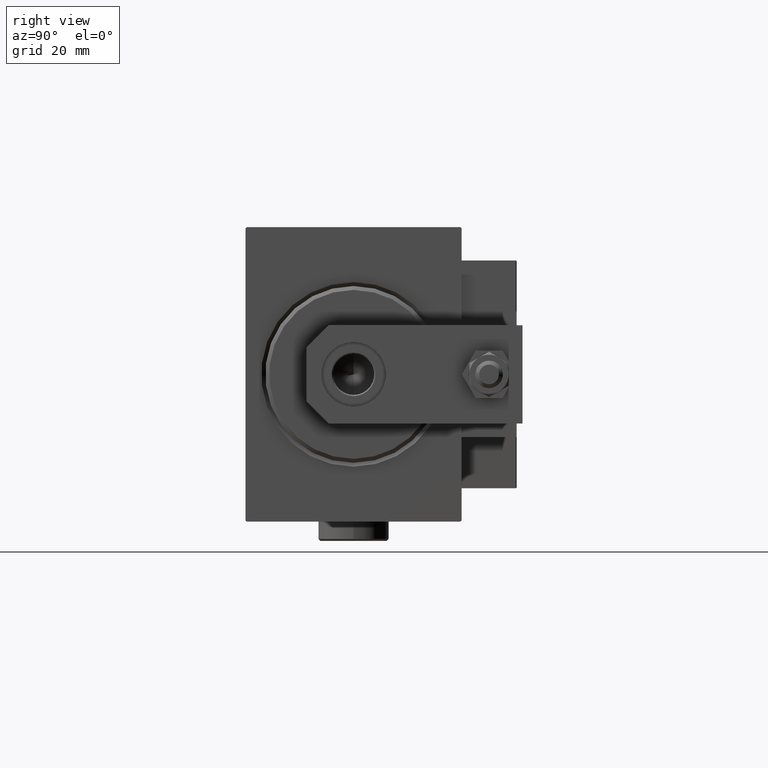
[diagram: clean part render]
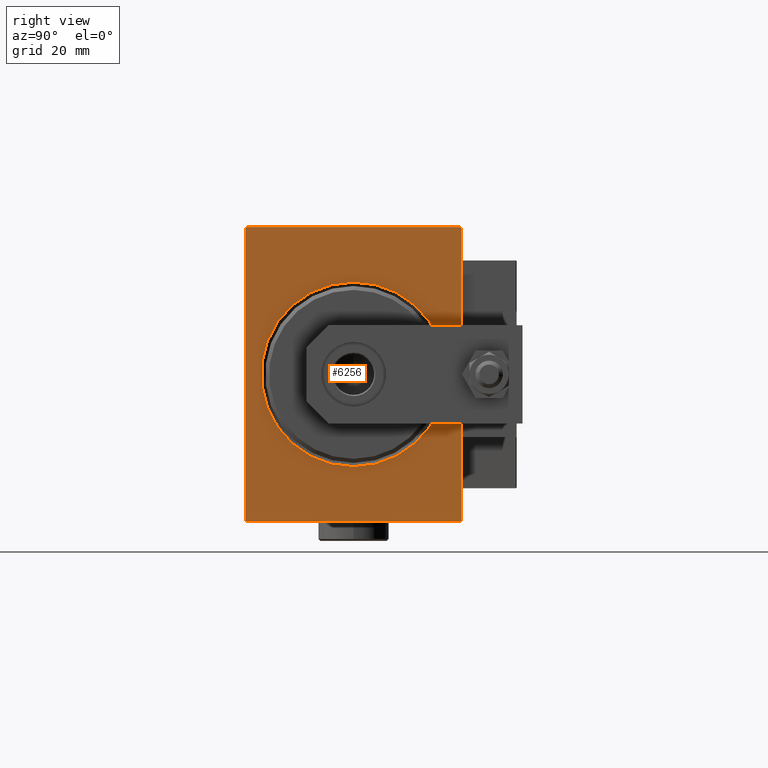
[diagram: same view with one face highlighted and labeled with its STEP entity id]
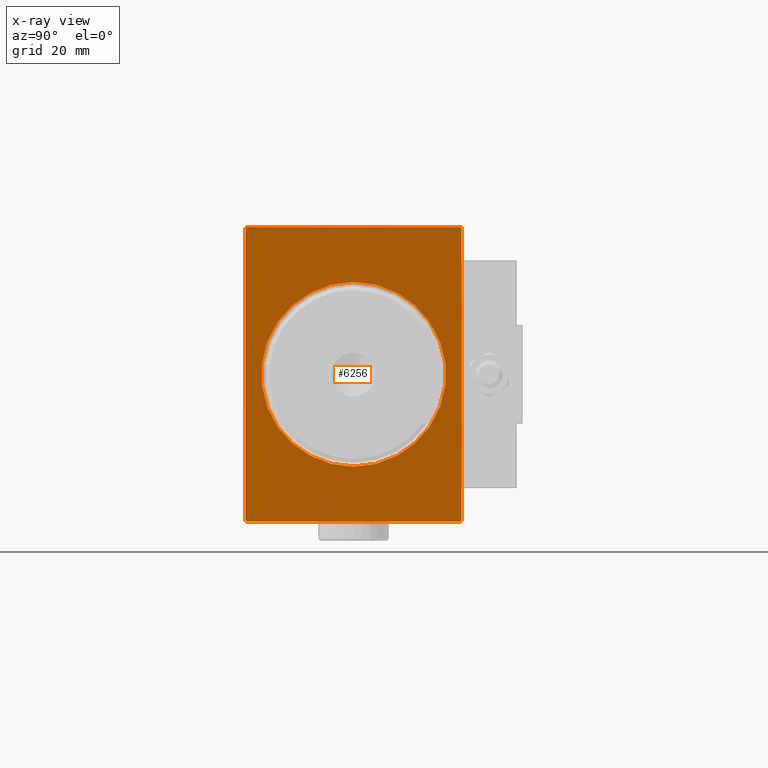
[diagram: x-ray of the same camera — body ghosted, the highlighted face saturated]
A machine part, right view. The second image highlights one B-rep face of the part: STEP entity #6256.
The next image is the same camera in x-ray: the body ghosted, the highlighted face saturated — about 0% of this face is hidden behind the body in this view.
In plain terms, the highlighted planar face has unit normal (-1, 0, 0).
Its self-contained STEP definition (entity closure, byte-faithful):
#690 = CARTESIAN_POINT ( 'NONE',  ( 0.000000000000000000, 0.000000000000000000, 0.000000000000000000 ) ) ;
#1217 = CARTESIAN_POINT ( 'NONE',  ( 0.000000000000000000, 27.20000000000000284, 37.50000000000000711 ) ) ;
#3337 = ORIENTED_EDGE ( 'NONE', *, *, #10580, .T. ) ;
#4147 = DIRECTION ( 'NONE',  ( 0.000000000000000000, 1.000000000000000000, 0.000000000000000000 ) ) ;
#5504 = EDGE_CURVE ( 'NONE', #7677, #23629, #23233, .T. ) ;
#5636 = CARTESIAN_POINT ( 'NONE',  ( 0.000000000000000000, 0.000000000000000000, 0.000000000000000000 ) ) ;
#6256 = ADVANCED_FACE ( 'NONE', ( #6659, #17984 ), #33691, .F. ) ;
#6304 = VERTEX_POINT ( 'NONE', #18247 ) ;
#6528 = ORIENTED_EDGE ( 'NONE', *, *, #8495, .T. ) ;
#6659 = FACE_BOUND ( 'NONE', #22028, .T. ) ;
#7175 = CARTESIAN_POINT ( 'NONE',  ( 0.000000000000000000, 0.000000000000000000, 0.000000000000000000 ) ) ;
#7677 = VERTEX_POINT ( 'NONE', #11452 ) ;
#7716 = CIRCLE ( 'NONE', #50473, 23.50000000000000355 ) ;
#8495 = EDGE_CURVE ( 'NONE', #17993, #12091, #49881, .T. ) ;
#9288 = CARTESIAN_POINT ( 'NONE',  ( 0.000000000000000000, -27.20000000000000284, 37.49999999999999289 ) ) ;
#10580 = EDGE_CURVE ( 'NONE', #32556, #23629, #21459, .T. ) ;
#10883 = VERTEX_POINT ( 'NONE', #15201 ) ;
#11452 = CARTESIAN_POINT ( 'NONE',  ( 0.000000000000000000, -27.50000000000000000, 37.19999999999999574 ) ) ;
#11565 = CARTESIAN_POINT ( 'NONE',  ( 0.000000000000000000, -27.50000000000000000, -37.19999999999999574 ) ) ;
#12091 = VERTEX_POINT ( 'NONE', #49046 ) ;
#13452 = EDGE_CURVE ( 'NONE', #7677, #30564, #15000, .T. ) ;
#14603 = EDGE_CURVE ( 'NONE', #6304, #12091, #34515, .T. ) ;
#14746 = CARTESIAN_POINT ( 'NONE',  ( 0.000000000000000000, -27.50000000000000000, 37.49999999999999289 ) ) ;
#15000 = LINE ( 'NONE', #30711, #30983 ) ;
#15145 = LINE ( 'NONE', #19262, #46104 ) ;
#15201 = CARTESIAN_POINT ( 'NONE',  ( 0.000000000000000000, 0.000000000000000000, 23.50000000000000355 ) ) ;
#15229 = CARTESIAN_POINT ( 'NONE',  ( 0.000000000000000000, -27.50000000000000000, -37.50000000000000711 ) ) ;
#15417 = DIRECTION ( 'NONE',  ( 0.000000000000000000, 0.000000000000000000, -1.000000000000000000 ) ) ;
#17105 = DIRECTION ( 'NONE',  ( 0.000000000000000000, -1.000000000000000000, -2.523234146875355998E-16 ) ) ;
#17172 = CARTESIAN_POINT ( 'NONE',  ( 0.000000000000000000, -27.19999999999999218, -37.50000000000000711 ) ) ;
#17984 = FACE_OUTER_BOUND ( 'NONE', #31320, .T. ) ;
#17993 = VERTEX_POINT ( 'NONE', #1217 ) ;
#18247 = CARTESIAN_POINT ( 'NONE',  ( 0.000000000000000000, 27.50000000000000355, -37.19999999999999574 ) ) ;
#18727 = CARTESIAN_POINT ( 'NONE',  ( 0.000000000000000000, 27.20000000000000284, 37.50000000000000711 ) ) ;
#19262 = CARTESIAN_POINT ( 'NONE',  ( 0.000000000000000000, 27.50000000000000355, -37.19999999999999574 ) ) ;
#20664 = AXIS2_PLACEMENT_3D ( 'NONE', #5636, #49400, #37298 ) ;
#21459 = LINE ( 'NONE', #26073, #49146 ) ;
#22028 = EDGE_LOOP ( 'NONE', ( #30590, #27373 ) ) ;
#22978 = DIRECTION ( 'NONE',  ( -0.000000000000000000, 0.7071067811865515695, 0.7071067811865435759 ) ) ;
#23233 = LINE ( 'NONE', #14746, #35324 ) ;
#23393 = VERTEX_POINT ( 'NONE', #30235 ) ;
#23629 = VERTEX_POINT ( 'NONE', #11565 ) ;
#23687 = AXIS2_PLACEMENT_3D ( 'NONE', #690, #32880, #36234 ) ;
#23733 = LINE ( 'NONE', #15229, #42047 ) ;
#25734 = ORIENTED_EDGE ( 'NONE', *, *, #5504, .F. ) ;
#26073 = CARTESIAN_POINT ( 'NONE',  ( 0.000000000000000000, -27.19999999999999218, -37.50000000000000711 ) ) ;
#26191 = DIRECTION ( 'NONE',  ( -0.000000000000000000, 0.7071067811865474617, -0.7071067811865474617 ) ) ;
#26496 = DIRECTION ( 'NONE',  ( 1.000000000000000000, 0.000000000000000000, 0.000000000000000000 ) ) ;
#27373 = ORIENTED_EDGE ( 'NONE', *, *, #27450, .T. ) ;
#27450 = EDGE_CURVE ( 'NONE', #23393, #10883, #45877, .T. ) ;
#27970 = EDGE_CURVE ( 'NONE', #17993, #30564, #28937, .T. ) ;
#28937 = LINE ( 'NONE', #32062, #50033 ) ;
#30235 = CARTESIAN_POINT ( 'NONE',  ( 0.000000000000000000, 2.877919977996280715E-15, -23.50000000000000355 ) ) ;
#30564 = VERTEX_POINT ( 'NONE', #9288 ) ;
#30590 = ORIENTED_EDGE ( 'NONE', *, *, #49200, .T. ) ;
#30711 = CARTESIAN_POINT ( 'NONE',  ( 0.000000000000000000, -27.50000000000000000, 37.19999999999999574 ) ) ;
#30757 = ORIENTED_EDGE ( 'NONE', *, *, #27970, .F. ) ;
#30983 = VECTOR ( 'NONE', #22978, 999.9999999999998863 ) ;
#31320 = EDGE_LOOP ( 'NONE', ( #30757, #6528, #32242, #33616, #45719, #3337, #25734, #48394 ) ) ;
#32062 = CARTESIAN_POINT ( 'NONE',  ( 0.000000000000000000, 27.49999999999999645, 37.50000000000000711 ) ) ;
#32242 = ORIENTED_EDGE ( 'NONE', *, *, #14603, .F. ) ;
#32556 = VERTEX_POINT ( 'NONE', #17172 ) ;
#32880 = DIRECTION ( 'NONE',  ( 1.000000000000000000, 0.000000000000000000, 0.000000000000000000 ) ) ;
#33616 = ORIENTED_EDGE ( 'NONE', *, *, #36364, .T. ) ;
#33691 = PLANE ( 'NONE',  #20664 ) ;
#34515 = LINE ( 'NONE', #42759, #41963 ) ;
#34974 = DIRECTION ( 'NONE',  ( 0.000000000000000000, -0.7071067811865434649, -0.7071067811865516806 ) ) ;
#35281 = DIRECTION ( 'NONE',  ( 0.000000000000000000, -9.251858538542970348E-17, 1.000000000000000000 ) ) ;
#35324 = VECTOR ( 'NONE', #47185, 1000.000000000000000 ) ;
#36234 = DIRECTION ( 'NONE',  ( 0.000000000000000000, 0.000000000000000000, -1.000000000000000000 ) ) ;
#36364 = EDGE_CURVE ( 'NONE', #6304, #50087, #15145, .T. ) ;
#37164 = DIRECTION ( 'NONE',  ( -0.000000000000000000, -0.7071067811865474617, 0.7071067811865474617 ) ) ;
#37298 = DIRECTION ( 'NONE',  ( 0.000000000000000000, 0.000000000000000000, -1.000000000000000000 ) ) ;
#38482 = CARTESIAN_POINT ( 'NONE',  ( 0.000000000000000000, 27.19999999999999929, -37.50000000000000711 ) ) ;
#41776 = EDGE_CURVE ( 'NONE', #32556, #50087, #23733, .T. ) ;
#41963 = VECTOR ( 'NONE', #35281, 1000.000000000000000 ) ;
#42047 = VECTOR ( 'NONE', #4147, 1000.000000000000000 ) ;
#42759 = CARTESIAN_POINT ( 'NONE',  ( 0.000000000000000000, 27.50000000000000355, -37.50000000000000711 ) ) ;
#45719 = ORIENTED_EDGE ( 'NONE', *, *, #41776, .F. ) ;
#45877 = CIRCLE ( 'NONE', #23687, 23.50000000000000355 ) ;
#46104 = VECTOR ( 'NONE', #34974, 1000.000000000000000 ) ;
#46590 = VECTOR ( 'NONE', #26191, 1000.000000000000114 ) ;
#47185 = DIRECTION ( 'NONE',  ( 0.000000000000000000, 0.000000000000000000, -1.000000000000000000 ) ) ;
#48394 = ORIENTED_EDGE ( 'NONE', *, *, #13452, .T. ) ;
#49046 = CARTESIAN_POINT ( 'NONE',  ( 0.000000000000000000, 27.49999999999999645, 37.20000000000000995 ) ) ;
#49146 = VECTOR ( 'NONE', #37164, 1000.000000000000114 ) ;
#49200 = EDGE_CURVE ( 'NONE', #10883, #23393, #7716, .T. ) ;
#49400 = DIRECTION ( 'NONE',  ( 1.000000000000000000, 0.000000000000000000, 0.000000000000000000 ) ) ;
#49881 = LINE ( 'NONE', #18727, #46590 ) ;
#50033 = VECTOR ( 'NONE', #17105, 1000.000000000000000 ) ;
#50087 = VERTEX_POINT ( 'NONE', #38482 ) ;
#50473 = AXIS2_PLACEMENT_3D ( 'NONE', #7175, #26496, #15417 ) ;